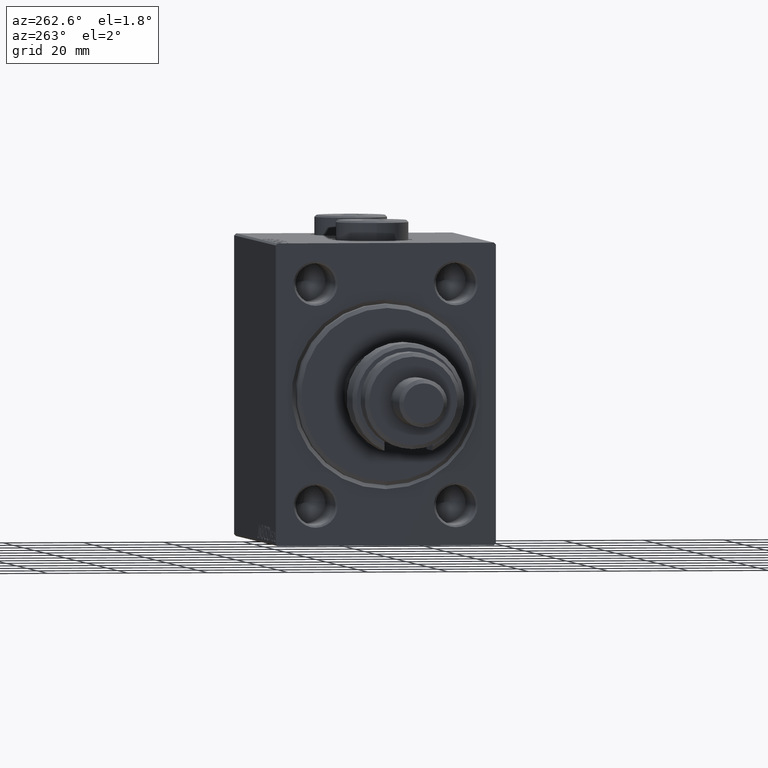
[diagram: clean part render]
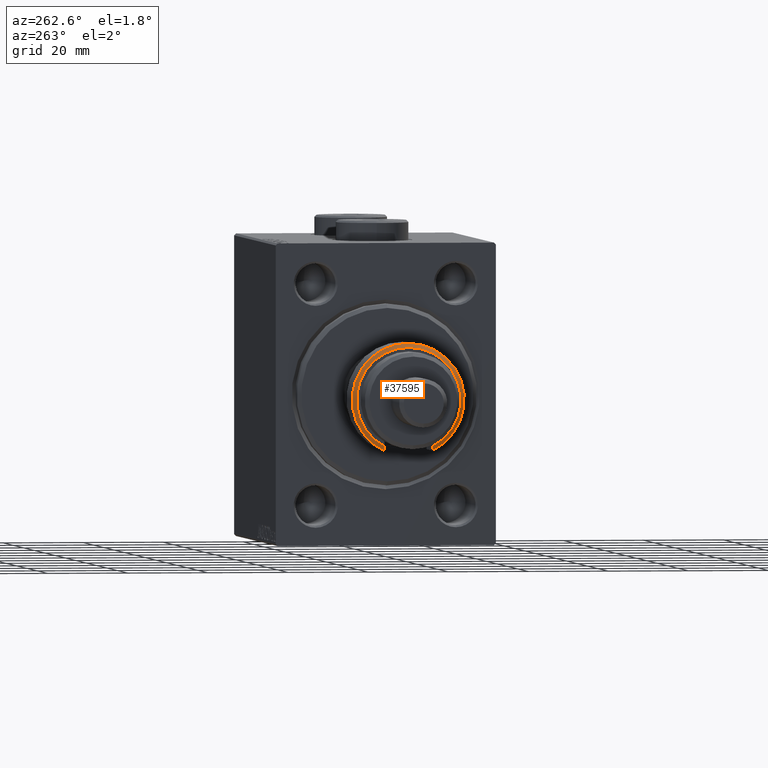
[diagram: same view with one face highlighted and labeled with its STEP entity id]
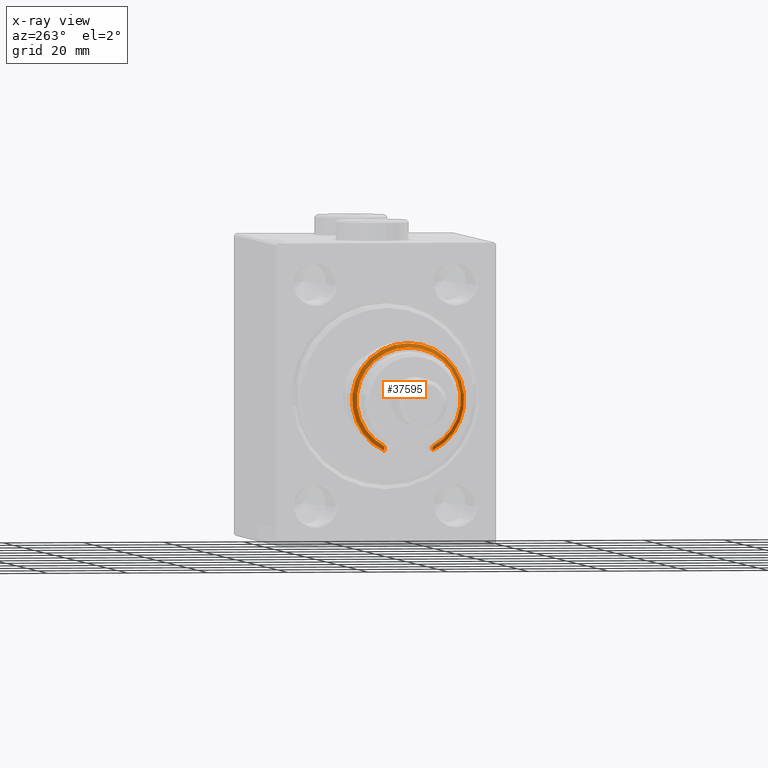
[diagram: x-ray of the same camera — body ghosted, the highlighted face saturated]
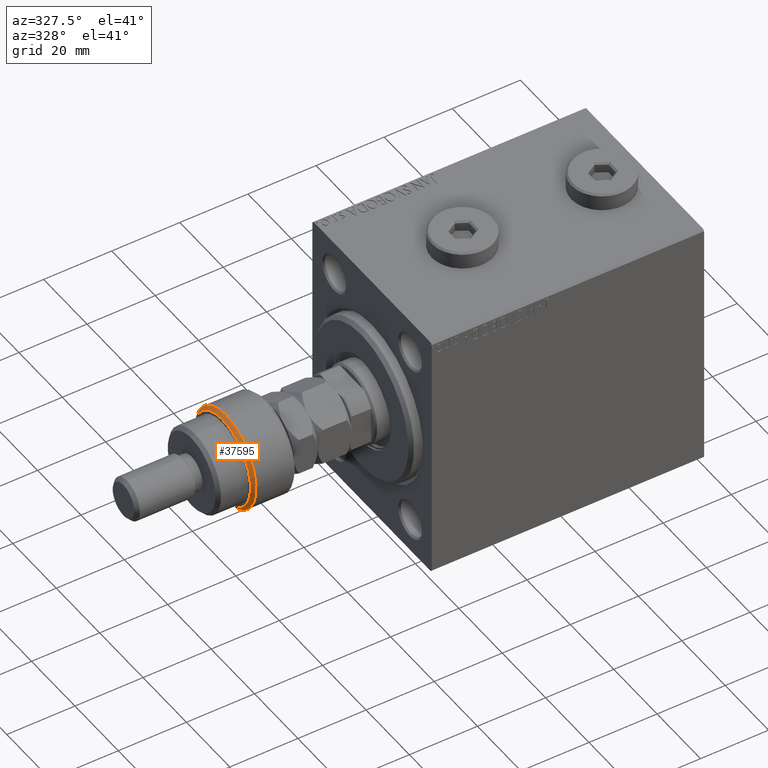
[diagram: same view with one face highlighted and labeled with its STEP entity id]
A machine part, auxiliary view. The second image highlights one B-rep face of the part: STEP entity #37595.
The next image is the same camera in x-ray: the body ghosted, the highlighted face saturated — about 0% of this face is hidden behind the body in this view.
A second angle (auxiliary view) of the same face is appended — the face is thin or edge-on in the first view.
In plain terms, the highlighted conical surface has half-angle 45 deg.
Its self-contained STEP definition (entity closure, byte-faithful):
#151 = CARTESIAN_POINT ( 'NONE',  ( -12.27838523675662330, 6.000000000000000000, 12.33495333224668400 ) ) ;
#292 = FACE_OUTER_BOUND ( 'NONE', #26029, .T. ) ;
#1723 = CARTESIAN_POINT ( 'NONE',  ( 0.000000000000000000, 0.000000000000000000, 12.00000000000002842 ) ) ;
#3576 = CARTESIAN_POINT ( 'NONE',  ( -11.90631947071482877, 6.000000000000000000, 12.66843272552569388 ) ) ;
#4842 = B_SPLINE_CURVE_WITH_KNOTS ( 'NONE', 3,
 ( #42123, #20072, #45556, #46038 ),
 .UNSPECIFIED., .F., .F.,
 ( 4, 4 ),
 ( 0.000000000000000000, 0.001498892771025448715 ),
 .UNSPECIFIED. ) ;
#5612 = CIRCLE ( 'NONE', #32975, 14.00000000000000000 ) ;
#7448 = B_SPLINE_CURVE_WITH_KNOTS ( 'NONE', 3,
 ( #14594, #3576, #151, #33426 ),
 .UNSPECIFIED., .F., .F.,
 ( 4, 4 ),
 ( 0.000000000000000000, 0.001498892771025448715 ),
 .UNSPECIFIED. ) ;
#8780 = VERTEX_POINT ( 'NONE', #17461 ) ;
#10755 = DIRECTION ( 'NONE',  ( 1.000000000000000000, 0.000000000000000000, 0.000000000000000000 ) ) ;
#11339 = EDGE_CURVE ( 'NONE', #35819, #32154, #7448, .T. ) ;
#14594 = CARTESIAN_POINT ( 'NONE',  ( -11.53256259467083567, 6.000000000000000000, 13.00000000000000000 ) ) ;
#15215 = CARTESIAN_POINT ( 'NONE',  ( 0.000000000000000000, 0.000000000000000000, 13.00000000000000000 ) ) ;
#15859 = ORIENTED_EDGE ( 'NONE', *, *, #11339, .F. ) ;
#17461 = CARTESIAN_POINT ( 'NONE',  ( -12.64911064067351809, -5.999999999999999112, 12.00000000000002842 ) ) ;
#19826 = DIRECTION ( 'NONE',  ( 1.000000000000000000, 0.000000000000000000, 0.000000000000000000 ) ) ;
#19893 = EDGE_CURVE ( 'NONE', #37936, #35819, #35993, .T. ) ;
#20072 = CARTESIAN_POINT ( 'NONE',  ( -12.27838523675662330, -5.999999999999999112, 12.33495333224668400 ) ) ;
#20712 = CARTESIAN_POINT ( 'NONE',  ( -12.64911064067351809, 6.000000000000000000, 12.00000000000002842 ) ) ;
#21588 = CONICAL_SURFACE ( 'NONE', #23953, 13.00000000000003553, 0.7853981633974447263 ) ;
#22864 = CARTESIAN_POINT ( 'NONE',  ( -11.53256259467083567, 6.000000000000000000, 13.00000000000000000 ) ) ;
#23395 = EDGE_CURVE ( 'NONE', #32154, #8780, #5612, .T. ) ;
#23953 = AXIS2_PLACEMENT_3D ( 'NONE', #15215, #45094, #26463 ) ;
#26029 = EDGE_LOOP ( 'NONE', ( #34224, #40930, #15859, #44776 ) ) ;
#26463 = DIRECTION ( 'NONE',  ( -1.000000000000000000, 0.000000000000000000, 0.000000000000000000 ) ) ;
#30272 = EDGE_CURVE ( 'NONE', #8780, #37936, #4842, .T. ) ;
#32100 = AXIS2_PLACEMENT_3D ( 'NONE', #37215, #41126, #10755 ) ;
#32154 = VERTEX_POINT ( 'NONE', #20712 ) ;
#32975 = AXIS2_PLACEMENT_3D ( 'NONE', #1723, #42122, #19826 ) ;
#33426 = CARTESIAN_POINT ( 'NONE',  ( -12.64911064067351809, 6.000000000000000000, 12.00000000000002842 ) ) ;
#34224 = ORIENTED_EDGE ( 'NONE', *, *, #30272, .F. ) ;
#34735 = CARTESIAN_POINT ( 'NONE',  ( -11.53256259467083567, -6.000000000000000000, 13.00000000000000000 ) ) ;
#35819 = VERTEX_POINT ( 'NONE', #22864 ) ;
#35993 = CIRCLE ( 'NONE', #32100, 13.00000000000003553 ) ;
#37215 = CARTESIAN_POINT ( 'NONE',  ( 0.000000000000000000, 0.000000000000000000, 13.00000000000000000 ) ) ;
#37595 = ADVANCED_FACE ( 'NONE', ( #292 ), #21588, .T. ) ;
#37936 = VERTEX_POINT ( 'NONE', #34735 ) ;
#40930 = ORIENTED_EDGE ( 'NONE', *, *, #23395, .F. ) ;
#41126 = DIRECTION ( 'NONE',  ( 0.000000000000000000, 0.000000000000000000, 1.000000000000000000 ) ) ;
#42122 = DIRECTION ( 'NONE',  ( 0.000000000000000000, 0.000000000000000000, -1.000000000000000000 ) ) ;
#42123 = CARTESIAN_POINT ( 'NONE',  ( -12.64911064067351809, -5.999999999999999112, 12.00000000000002842 ) ) ;
#44776 = ORIENTED_EDGE ( 'NONE', *, *, #19893, .F. ) ;
#45094 = DIRECTION ( 'NONE',  ( 0.000000000000000000, 0.000000000000000000, -1.000000000000000000 ) ) ;
#45556 = CARTESIAN_POINT ( 'NONE',  ( -11.90631947071482877, -6.000000000000000000, 12.66843272552569388 ) ) ;
#46038 = CARTESIAN_POINT ( 'NONE',  ( -11.53256259467083567, -6.000000000000000000, 13.00000000000000000 ) ) ;